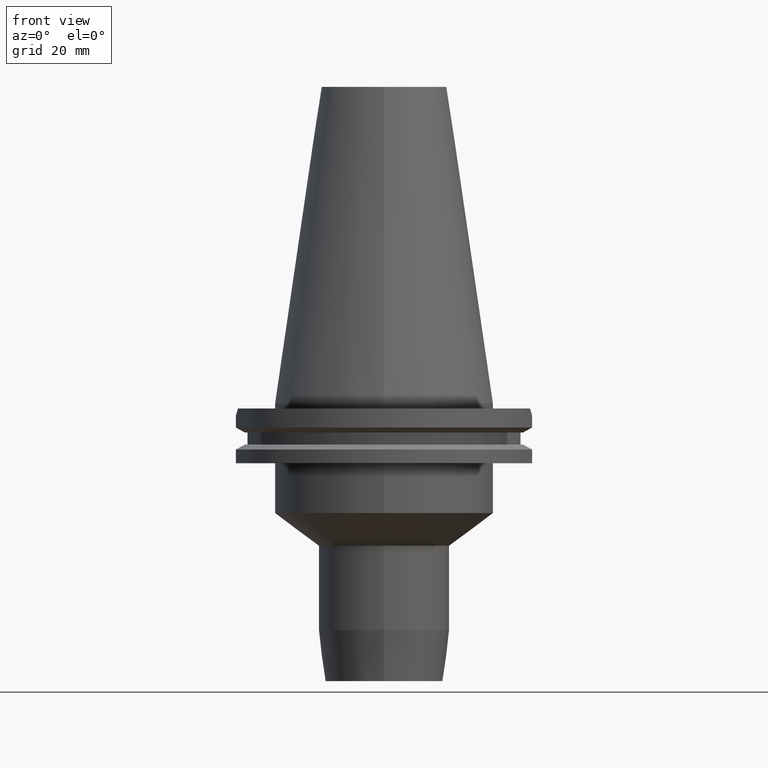
[diagram: clean part render]
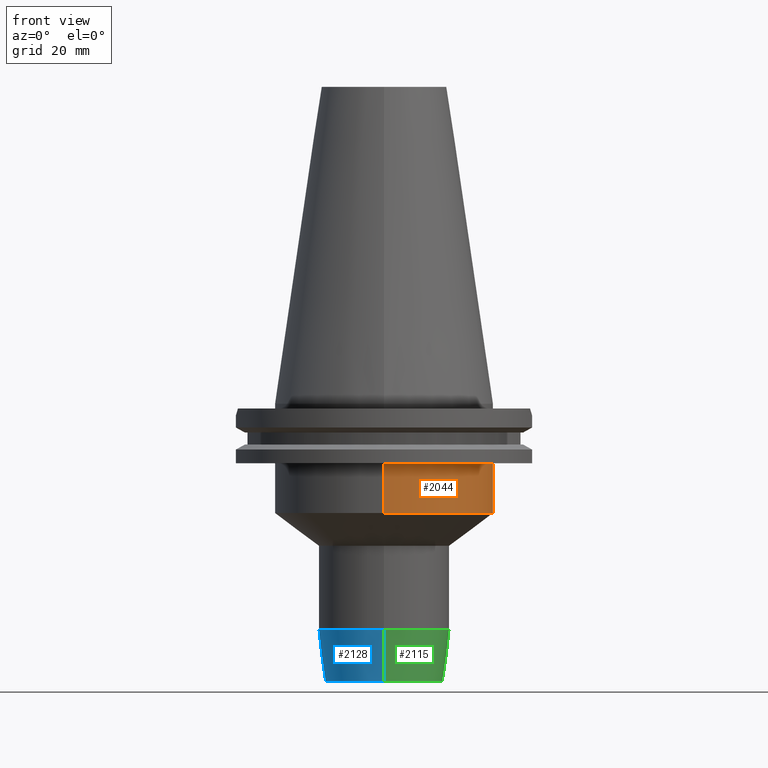
[diagram: same view with three faces highlighted in distinct colors, each labeled with its STEP entity id]
A machine part, front view with three faces highlighted in distinct colors.
Their STEP definitions:

[orange] entity #2044 — the highlighted cylindrical surface (partial cylindrical patch) has radius 34.925 mm, axis along (0, 0, 1).
#259=CARTESIAN_POINT('',(0.E0,0.E0,-1.905E1));
#260=DIRECTION('',(0.E0,0.E0,-1.E0));
#261=DIRECTION('',(0.E0,1.E0,0.E0));
#262=AXIS2_PLACEMENT_3D('',#259,#260,#261);
#848=DIRECTION('',(0.E0,-5.746709273545E-14,-1.E0));
#849=VECTOR('',#848,1.595E1);
#850=CARTESIAN_POINT('',(0.E0,-3.4925E1,-1.905E1));
#851=LINE('',#850,#849);
#855=DIRECTION('',(0.E0,5.746709273545E-14,-1.E0));
#856=VECTOR('',#855,1.595E1);
#857=CARTESIAN_POINT('',(0.E0,3.4925E1,-1.905E1));
#858=LINE('',#857,#856);
#877=CARTESIAN_POINT('',(0.E0,0.E0,-3.5E1));
#878=DIRECTION('',(0.E0,0.E0,1.E0));
#879=DIRECTION('',(0.E0,-1.E0,0.E0));
#880=AXIS2_PLACEMENT_3D('',#877,#878,#879);
#1272=CARTESIAN_POINT('',(0.E0,-3.4925E1,-1.905E1));
#1273=CARTESIAN_POINT('',(0.E0,3.4925E1,-1.905E1));
#1274=VERTEX_POINT('',#1272);
#1275=VERTEX_POINT('',#1273);
#1276=CARTESIAN_POINT('',(0.E0,3.4925E1,-3.5E1));
#1277=VERTEX_POINT('',#1276);
#1278=CARTESIAN_POINT('',(0.E0,-3.4925E1,-3.5E1));
#1279=VERTEX_POINT('',#1278);
#2032=CARTESIAN_POINT('',(0.E0,0.E0,-9.8425E1));
#2033=DIRECTION('',(0.E0,0.E0,1.E0));
#2034=DIRECTION('',(0.E0,1.E0,0.E0));
#2035=AXIS2_PLACEMENT_3D('',#2032,#2033,#2034);
#2036=CYLINDRICAL_SURFACE('',#2035,3.4925E1);
#2037=ORIENTED_EDGE('',*,*,#2022,.T.);
#2039=ORIENTED_EDGE('',*,*,#2038,.F.);
#2040=ORIENTED_EDGE('',*,*,#2025,.F.);
#2041=ORIENTED_EDGE('',*,*,#1570,.F.);
#2042=EDGE_LOOP('',(#2037,#2039,#2040,#2041));
#2043=FACE_OUTER_BOUND('',#2042,.F.);
#263=CIRCLE('',#262,3.4925E1);
#881=CIRCLE('',#880,3.4925E1);
#1570=EDGE_CURVE('',#1275,#1274,#263,.T.);
#2022=EDGE_CURVE('',#1275,#1277,#858,.T.);
#2025=EDGE_CURVE('',#1274,#1279,#851,.T.);
#2038=EDGE_CURVE('',#1279,#1277,#881,.T.);
#2044=ADVANCED_FACE('',(#2043),#2036,.T.);

[blue] entity #2128 — the highlighted conical surface has half-angle 7.5 deg.
#922=DIRECTION('',(0.E0,-1.305261922200E-1,-9.914448613738E-1));
#923=VECTOR('',#922,1.650626562651E1);
#924=CARTESIAN_POINT('',(0.E0,2.1E1,-7.253494776413E1));
#925=LINE('',#924,#923);
#937=CARTESIAN_POINT('',(0.E0,0.E0,-7.253494776413E1));
#938=DIRECTION('',(0.E0,0.E0,1.E0));
#939=DIRECTION('',(0.E0,1.E0,0.E0));
#940=AXIS2_PLACEMENT_3D('',#937,#938,#939);
#945=DIRECTION('',(0.E0,1.305261922200E-1,-9.914448613738E-1));
#946=VECTOR('',#945,1.650626562651E1);
#947=CARTESIAN_POINT('',(0.E0,-2.1E1,-7.253494776413E1));
#948=LINE('',#947,#946);
#960=CARTESIAN_POINT('',(0.E0,0.E0,-8.89E1));
#961=DIRECTION('',(0.E0,0.E0,1.E0));
#962=DIRECTION('',(0.E0,1.E0,0.E0));
#963=AXIS2_PLACEMENT_3D('',#960,#961,#962);
#1284=CARTESIAN_POINT('',(0.E0,2.1E1,-7.253494776413E1));
#1285=VERTEX_POINT('',#1284);
#1286=CARTESIAN_POINT('',(0.E0,-2.1E1,-7.253494776413E1));
#1287=VERTEX_POINT('',#1286);
#1288=CARTESIAN_POINT('',(0.E0,1.88455E1,-8.89E1));
#1289=VERTEX_POINT('',#1288);
#1290=CARTESIAN_POINT('',(0.E0,-1.88455E1,-8.89E1));
#1291=VERTEX_POINT('',#1290);
#2116=CARTESIAN_POINT('',(0.E0,0.E0,-8.071747388207E1));
#2117=DIRECTION('',(0.E0,0.E0,1.E0));
#2118=DIRECTION('',(0.E0,1.E0,0.E0));
#2119=AXIS2_PLACEMENT_3D('',#2116,#2117,#2118);
#2120=CONICAL_SURFACE('',#2119,1.992275E1,7.5E0);
#2121=ORIENTED_EDGE('',*,*,#2106,.F.);
#2122=ORIENTED_EDGE('',*,*,#2083,.T.);
#2123=ORIENTED_EDGE('',*,*,#2110,.T.);
#2125=ORIENTED_EDGE('',*,*,#2124,.F.);
#2126=EDGE_LOOP('',(#2121,#2122,#2123,#2125));
#2127=FACE_OUTER_BOUND('',#2126,.F.);
#941=CIRCLE('',#940,2.1E1);
#964=CIRCLE('',#963,1.88455E1);
#2083=EDGE_CURVE('',#1285,#1287,#941,.T.);
#2106=EDGE_CURVE('',#1285,#1289,#925,.T.);
#2110=EDGE_CURVE('',#1287,#1291,#948,.T.);
#2124=EDGE_CURVE('',#1289,#1291,#964,.T.);
#2128=ADVANCED_FACE('',(#2127),#2120,.T.);

[green] entity #2115 — the highlighted conical surface has half-angle 7.5 deg.
#922=DIRECTION('',(0.E0,-1.305261922200E-1,-9.914448613738E-1));
#923=VECTOR('',#922,1.650626562651E1);
#924=CARTESIAN_POINT('',(0.E0,2.1E1,-7.253494776413E1));
#925=LINE('',#924,#923);
#929=CARTESIAN_POINT('',(0.E0,0.E0,-7.253494776413E1));
#930=DIRECTION('',(0.E0,0.E0,1.E0));
#931=DIRECTION('',(0.E0,-1.E0,0.E0));
#932=AXIS2_PLACEMENT_3D('',#929,#930,#931);
#945=DIRECTION('',(0.E0,1.305261922200E-1,-9.914448613738E-1));
#946=VECTOR('',#945,1.650626562651E1);
#947=CARTESIAN_POINT('',(0.E0,-2.1E1,-7.253494776413E1));
#948=LINE('',#947,#946);
#952=CARTESIAN_POINT('',(0.E0,0.E0,-8.89E1));
#953=DIRECTION('',(0.E0,0.E0,1.E0));
#954=DIRECTION('',(0.E0,-1.E0,0.E0));
#955=AXIS2_PLACEMENT_3D('',#952,#953,#954);
#1284=CARTESIAN_POINT('',(0.E0,2.1E1,-7.253494776413E1));
#1285=VERTEX_POINT('',#1284);
#1286=CARTESIAN_POINT('',(0.E0,-2.1E1,-7.253494776413E1));
#1287=VERTEX_POINT('',#1286);
#1288=CARTESIAN_POINT('',(0.E0,1.88455E1,-8.89E1));
#1289=VERTEX_POINT('',#1288);
#1290=CARTESIAN_POINT('',(0.E0,-1.88455E1,-8.89E1));
#1291=VERTEX_POINT('',#1290);
#2101=CARTESIAN_POINT('',(0.E0,0.E0,-8.071747388207E1));
#2102=DIRECTION('',(0.E0,0.E0,1.E0));
#2103=DIRECTION('',(0.E0,1.E0,0.E0));
#2104=AXIS2_PLACEMENT_3D('',#2101,#2102,#2103);
#2105=CONICAL_SURFACE('',#2104,1.992275E1,7.5E0);
#2107=ORIENTED_EDGE('',*,*,#2106,.T.);
#2109=ORIENTED_EDGE('',*,*,#2108,.F.);
#2111=ORIENTED_EDGE('',*,*,#2110,.F.);
#2112=ORIENTED_EDGE('',*,*,#2094,.T.);
#2113=EDGE_LOOP('',(#2107,#2109,#2111,#2112));
#2114=FACE_OUTER_BOUND('',#2113,.F.);
#933=CIRCLE('',#932,2.1E1);
#956=CIRCLE('',#955,1.88455E1);
#2094=EDGE_CURVE('',#1287,#1285,#933,.T.);
#2106=EDGE_CURVE('',#1285,#1289,#925,.T.);
#2108=EDGE_CURVE('',#1291,#1289,#956,.T.);
#2110=EDGE_CURVE('',#1287,#1291,#948,.T.);
#2115=ADVANCED_FACE('',(#2114),#2105,.T.);